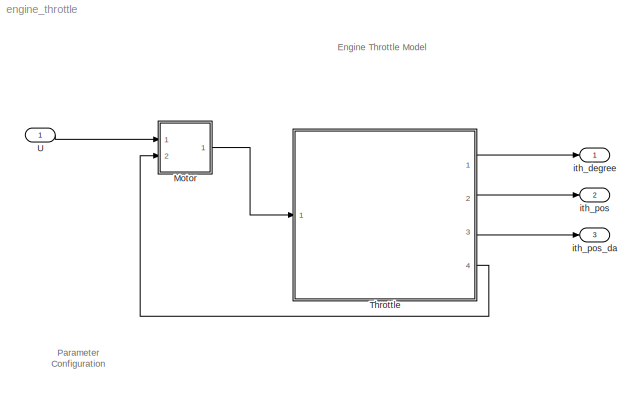
MODEL engine_throttle
KIND model
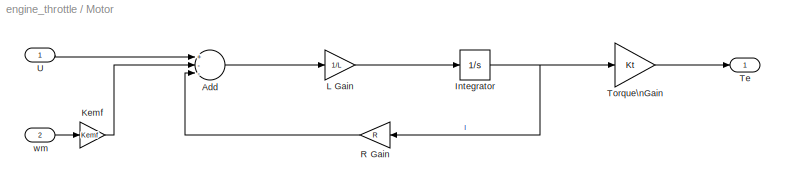
BLOCK [SubSystem] Motor
  FunctionWithSeparateData = off
  MaskHideContents = off
  MinAlgLoopOccurrences = off
  Opaque = off
  Ports = [2, 1]
  PropExecContextOutsideSubsystem = off
  RTWSystemCode = Auto
  RequestExecContextInheritance = off
  SID = 2
BLOCK [Sum] Motor/Add
  InputSameDT = off
  Inputs = +--
  OutDataTypeStr = Inherit: Inherit via internal rule
  Ports = [3, 1]
  SID = 34
  SaturateOnIntegerOverflow = off
BLOCK [Integrator] Motor/Integrator
  Ports = [1, 1]
  SID = 41
BLOCK [Gain] Motor/Kemf
  Gain = Kemf
  OutDataTypeStr = Inherit: Inherit via internal rule
  ParamDataTypeStr = Inherit: Inherit via internal rule
  SID = 36
  SaturateOnIntegerOverflow = off
BLOCK [Gain] Motor/L Gain
  Gain = 1/L
  OutDataTypeStr = Inherit: Inherit via internal rule
  ParamDataTypeStr = Inherit: Inherit via internal rule
  SID = 37
  SaturateOnIntegerOverflow = off
BLOCK [Gain] Motor/R Gain
  Gain = R
  OutDataTypeStr = Inherit: Inherit via internal rule
  ParamDataTypeStr = Inherit: Inherit via internal rule
  SID = 38
  SaturateOnIntegerOverflow = off
BLOCK [Outport] Motor/Te
  IconDisplay = Port number
  SID = 40
BLOCK [Gain] Motor/Torque\nGain
  Gain = Kt
  SID = 5
BLOCK [Inport] Motor/U
  IconDisplay = Port number
  SID = 32
BLOCK [Inport] Motor/wm
  IconDisplay = Port number
  Port = 2
  SID = 33
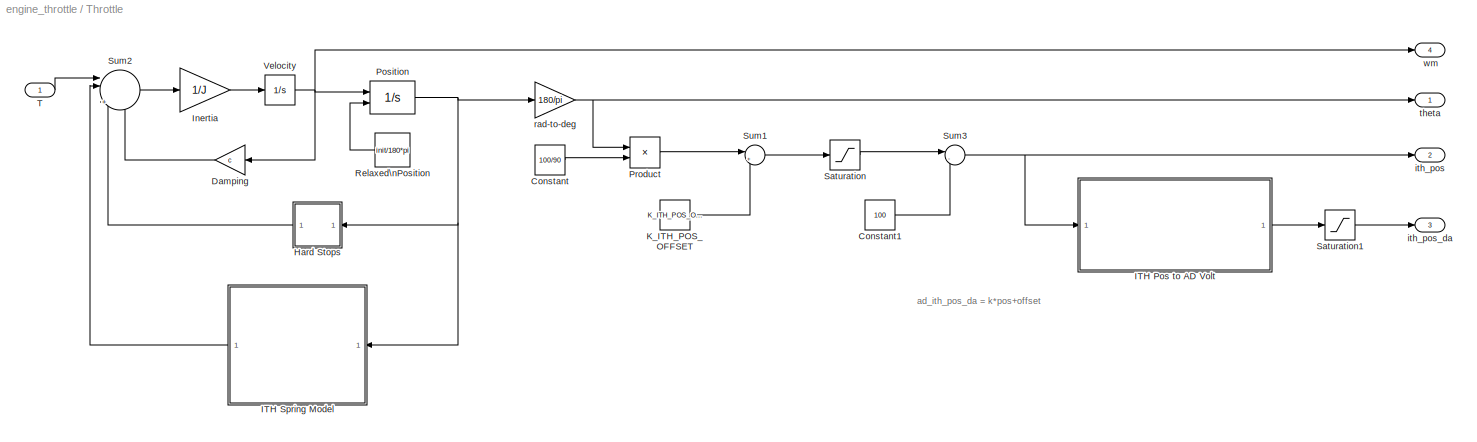
BLOCK [SubSystem] Throttle
  FunctionWithSeparateData = off
  MaskHideContents = off
  MinAlgLoopOccurrences = off
  Opaque = off
  Ports = [1, 4]
  PropExecContextOutsideSubsystem = off
  RTWSystemCode = Auto
  RequestExecContextInheritance = off
  SID = 124
BLOCK [Constant] Throttle/Constant
  SID = 126
  Value = 100/90
BLOCK [Constant] Throttle/Constant1
  SID = 127
  Value = 100
BLOCK [Gain] Throttle/Damping
  Gain = c
  OutDataTypeStr = Inherit: Inherit via internal rule
  ParamDataTypeStr = Inherit: Inherit via internal rule
  SID = 128
  SaturateOnIntegerOverflow = off
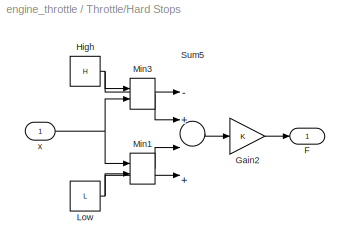
BLOCK [SubSystem] Throttle/Hard Stops
  FunctionWithSeparateData = off
  MaskHideContents = off
  MinAlgLoopOccurrences = off
  Opaque = off
  Ports = [1, 1]
  PropExecContextOutsideSubsystem = off
  RTWSystemCode = Auto
  RequestExecContextInheritance = off
  SID = 129
BLOCK [Outport] Throttle/Hard Stops/F
  IconDisplay = Port number
  SID = 137
BLOCK [Gain] Throttle/Hard Stops/Gain2
  Gain = K
  SID = 131
BLOCK [Constant] Throttle/Hard Stops/High
  SID = 132
  Value = H
BLOCK [Constant] Throttle/Hard Stops/Low
  SID = 133
  Value = L
BLOCK [MinMax] Throttle/Hard Stops/Min1
  Inputs = 2
  Ports = [2, 1]
  SID = 134
BLOCK [MinMax] Throttle/Hard Stops/Min3
  Function = max
  Inputs = 2
  Ports = [2, 1]
  SID = 135
BLOCK [Sum] Throttle/Hard Stops/Sum5
  Inputs = -+||+-
  Ports = [4, 1]
  SID = 136
BLOCK [Inport] Throttle/Hard Stops/x
  IconDisplay = Port number
  SID = 130
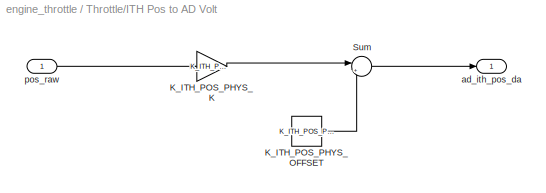
BLOCK [SubSystem] Throttle/ITH Pos to AD Volt
  FunctionWithSeparateData = off
  MaskHideContents = off
  MinAlgLoopOccurrences = off
  Opaque = off
  Ports = [1, 1]
  PropExecContextOutsideSubsystem = off
  RTWSystemCode = Auto
  RequestExecContextInheritance = off
  SID = 138
BLOCK [Gain] Throttle/ITH Pos to AD Volt/K_ITH_POS_PHYS_K
  Gain = K_ITH_POS_PHYS_K
  OutDataTypeStr = Inherit: Inherit via internal rule
  ParamDataTypeStr = Inherit: Inherit via internal rule
  SID = 140
  SaturateOnIntegerOverflow = off
BLOCK [Constant] Throttle/ITH Pos to AD Volt/K_ITH_POS_PHYS_OFFSET
  SID = 141
  Value = K_ITH_POS_PHYS_OFFSET
BLOCK [Sum] Throttle/ITH Pos to AD Volt/Sum
  IconShape = round
  InputSameDT = off
  Inputs = |++
  OutDataTypeStr = Inherit: Inherit via internal rule
  Ports = [2, 1]
  SID = 142
  SaturateOnIntegerOverflow = off
BLOCK [Outport] Throttle/ITH Pos to AD Volt/ad_ith_pos_da
  IconDisplay = Port number
  SID = 143
BLOCK [Inport] Throttle/ITH Pos to AD Volt/pos_raw
  IconDisplay = Port number
  SID = 139
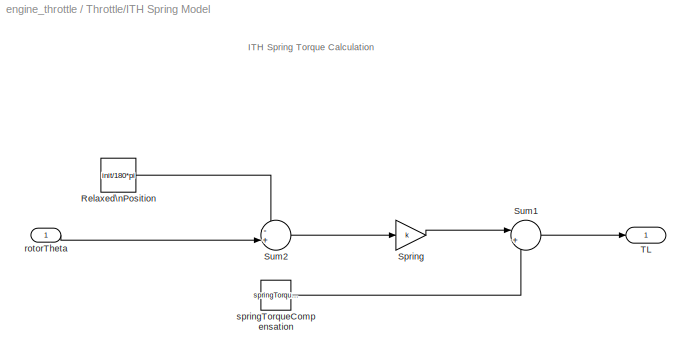
BLOCK [SubSystem] Throttle/ITH Spring Model
  FunctionWithSeparateData = off
  MaskHideContents = off
  MinAlgLoopOccurrences = off
  MinMaxOverflowLogging = MinMaxAndOverflow
  Opaque = off
  Ports = [1, 1]
  PropExecContextOutsideSubsystem = off
  RTWSystemCode = Auto
  RequestExecContextInheritance = off
  SID = 144
BLOCK [Constant] Throttle/ITH Spring Model/Relaxed\nPosition
  SID = 146
  Value = init/180*pi
BLOCK [Gain] Throttle/ITH Spring Model/Spring
  Gain = k
  OutDataTypeStr = Inherit: Inherit via internal rule
  ParamDataTypeStr = Inherit: Inherit via internal rule
  SID = 147
  SaturateOnIntegerOverflow = off
BLOCK [Sum] Throttle/ITH Spring Model/Sum1
  IconShape = round
  InputSameDT = off
  Inputs = |++
  OutDataTypeStr = Inherit: Inherit via internal rule
  Ports = [2, 1]
  SID = 148
  SaturateOnIntegerOverflow = off
BLOCK [Sum] Throttle/ITH Spring Model/Sum2
  IconShape = round
  InputSameDT = off
  Inputs = -+|
  OutDataTypeStr = Inherit: Inherit via internal rule
  Ports = [2, 1]
  SID = 149
  SaturateOnIntegerOverflow = off
BLOCK [Outport] Throttle/ITH Spring Model/TL
  IconDisplay = Port number
  SID = 151
BLOCK [Inport] Throttle/ITH Spring Model/rotorTheta
  IconDisplay = Port number
  SID = 145
BLOCK [Constant] Throttle/ITH Spring Model/springTorqueCompensation
  SID = 150
  Value = springTorqueCompensation
BLOCK [Gain] Throttle/Inertia
  Gain = 1/J
  SID = 153
BLOCK [Constant] Throttle/K_ITH_POS_OFFSET
  SID = 154
  Value = K_ITH_POS_OFFSET
BLOCK [Integrator] Throttle/Position
  InitialConditionSource = external
  Ports = [2, 1]
  SID = 155
BLOCK [Product] Throttle/Product
  InputSameDT = off
  OutDataTypeStr = Inherit: Inherit via internal rule
  Ports = [2, 1]
  RndMeth = Floor
  SID = 156
  SaturateOnIntegerOverflow = off
BLOCK [Constant] Throttle/Relaxed\nPosition
  SID = 157
  Value = init/180*pi
BLOCK [Saturate] Throttle/Saturation
  InputPortMap = u0
  LowerLimit = -25
  Ports = [1, 1]
  SID = 158
  UpperLimit = 125
BLOCK [Saturate] Throttle/Saturation1
  InputPortMap = u0
  LowerLimit = 0
  OutDataTypeStr = uint16
  Ports = [1, 1]
  SID = 159
  UpperLimit = 4095
BLOCK [Sum] Throttle/Sum1
  IconShape = round
  InputSameDT = off
  Inputs = |++
  OutDataTypeStr = Inherit: Inherit via internal rule
  Ports = [2, 1]
  SID = 160
  SaturateOnIntegerOverflow = off
BLOCK [Sum] Throttle/Sum2
  IconShape = round
  Inputs = |||+---
  Ports = [4, 1]
  SID = 161
BLOCK [Sum] Throttle/Sum3
  IconShape = round
  InputSameDT = off
  Inputs = |-+
  OutDataTypeStr = Inherit: Inherit via internal rule
  Ports = [2, 1]
  SID = 162
  SaturateOnIntegerOverflow = off
BLOCK [Inport] Throttle/T
  IconDisplay = Port number
  SID = 125
BLOCK [Integrator] Throttle/Velocity
  Ports = [1, 1]
  SID = 163
BLOCK [Outport] Throttle/ith_pos
  IconDisplay = Port number
  Port = 2
  SID = 166
BLOCK [Outport] Throttle/ith_pos_da
  IconDisplay = Port number
  Port = 3
  SID = 167
BLOCK [Gain] Throttle/rad-to-deg
  Gain = 180/pi
  OutDataTypeStr = Inherit: Inherit via internal rule
  ParamDataTypeStr = Inherit: Inherit via internal rule
  SID = 164
  SaturateOnIntegerOverflow = off
BLOCK [Outport] Throttle/theta
  IconDisplay = Port number
  SID = 165
BLOCK [Outport] Throttle/wm
  IconDisplay = Port number
  Port = 4
  SID = 168
BLOCK [Inport] U
  IconDisplay = Port number
  SID = 174
BLOCK [Outport] ith_degree
  IconDisplay = Port number
  SID = 29
BLOCK [Outport] ith_pos
  IconDisplay = Port number
  Port = 2
  SID = 170
BLOCK [Outport] ith_pos_da
  IconDisplay = Port number
  Port = 3
  SID = 171
ANNOTATION (root): Engine Throttle Model
ANNOTATION (root): Parameter\nConfiguration
ANNOTATION Throttle: ad_ith_pos_da = k*pos+offset
ANNOTATION Throttle/ITH Spring Model: ITH Spring Torque Calculation
LINE Motor/Add:1 -> Motor/L Gain:1
NET Motor/Integrator:1 -> Motor/R Gain:1, Motor/Torque\nGain:1
LINE Motor/Kemf:1 -> Motor/Add:2
LINE Motor/L Gain:1 -> Motor/Integrator:1
LINE Motor/R Gain:1 -> Motor/Add:3
LINE Motor/Torque\nGain:1 -> Motor/Te:1
LINE Motor/U:1 -> Motor/Add:1
LINE Motor/wm:1 -> Motor/Kemf:1
LINE Motor:1 -> Throttle:1
LINE Throttle/Constant1:1 -> Throttle/Sum3:2
LINE Throttle/Constant:1 -> Throttle/Product:2
LINE Throttle/Damping:1 -> Throttle/Sum2:4
LINE Throttle/Hard Stops/Gain2:1 -> Throttle/Hard Stops/F:1
NET Throttle/Hard Stops/High:1 -> Throttle/Hard Stops/Min3:1, Throttle/Hard Stops/Sum5:1
NET Throttle/Hard Stops/Low:1 -> Throttle/Hard Stops/Min1:2, Throttle/Hard Stops/Sum5:4
LINE Throttle/Hard Stops/Min1:1 -> Throttle/Hard Stops/Sum5:3
LINE Throttle/Hard Stops/Min3:1 -> Throttle/Hard Stops/Sum5:2
LINE Throttle/Hard Stops/Sum5:1 -> Throttle/Hard Stops/Gain2:1
NET Throttle/Hard Stops/x:1 -> Throttle/Hard Stops/Min1:1, Throttle/Hard Stops/Min3:2
LINE Throttle/Hard Stops:1 -> Throttle/Sum2:3
LINE Throttle/ITH Pos to AD Volt/K_ITH_POS_PHYS_K:1 -> Throttle/ITH Pos to AD Volt/Sum:1
LINE Throttle/ITH Pos to AD Volt/K_ITH_POS_PHYS_OFFSET:1 -> Throttle/ITH Pos to AD Volt/Sum:2
LINE Throttle/ITH Pos to AD Volt/Sum:1 -> Throttle/ITH Pos to AD Volt/ad_ith_pos_da:1
LINE Throttle/ITH Pos to AD Volt/pos_raw:1 -> Throttle/ITH Pos to AD Volt/K_ITH_POS_PHYS_K:1
LINE Throttle/ITH Pos to AD Volt:1 -> Throttle/Saturation1:1
LINE Throttle/ITH Spring Model/Relaxed\nPosition:1 -> Throttle/ITH Spring Model/Sum2:1
LINE Throttle/ITH Spring Model/Spring:1 -> Throttle/ITH Spring Model/Sum1:1
LINE Throttle/ITH Spring Model/Sum1:1 -> Throttle/ITH Spring Model/TL:1
LINE Throttle/ITH Spring Model/Sum2:1 -> Throttle/ITH Spring Model/Spring:1
LINE Throttle/ITH Spring Model/rotorTheta:1 -> Throttle/ITH Spring Model/Sum2:2
LINE Throttle/ITH Spring Model/springTorqueCompensation:1 -> Throttle/ITH Spring Model/Sum1:2
LINE Throttle/ITH Spring Model:1 -> Throttle/Sum2:2
LINE Throttle/Inertia:1 -> Throttle/Velocity:1
LINE Throttle/K_ITH_POS_OFFSET:1 -> Throttle/Sum1:2
NET Throttle/Position:1 -> Throttle/Hard Stops:1, Throttle/ITH Spring Model:1, Throttle/rad-to-deg:1
LINE Throttle/Product:1 -> Throttle/Sum1:1
LINE Throttle/Relaxed\nPosition:1 -> Throttle/Position:2
LINE Throttle/Saturation1:1 -> Throttle/ith_pos_da:1
LINE Throttle/Saturation:1 -> Throttle/Sum3:1
LINE Throttle/Sum1:1 -> Throttle/Saturation:1
LINE Throttle/Sum2:1 -> Throttle/Inertia:1
NET Throttle/Sum3:1 -> Throttle/ITH Pos to AD Volt:1, Throttle/ith_pos:1
LINE Throttle/T:1 -> Throttle/Sum2:1
NET Throttle/Velocity:1 -> Throttle/Damping:1, Throttle/Position:1, Throttle/wm:1
NET Throttle/rad-to-deg:1 -> Throttle/Product:1, Throttle/theta:1
LINE Throttle:1 -> ith_degree:1
LINE Throttle:2 -> ith_pos:1
LINE Throttle:3 -> ith_pos_da:1
LINE Throttle:4 -> Motor:2
LINE U:1 -> Motor:1
note: NET lines group one-source signal fan-out (src -> all destinations, sorted); 1:1 wires keep LINE
